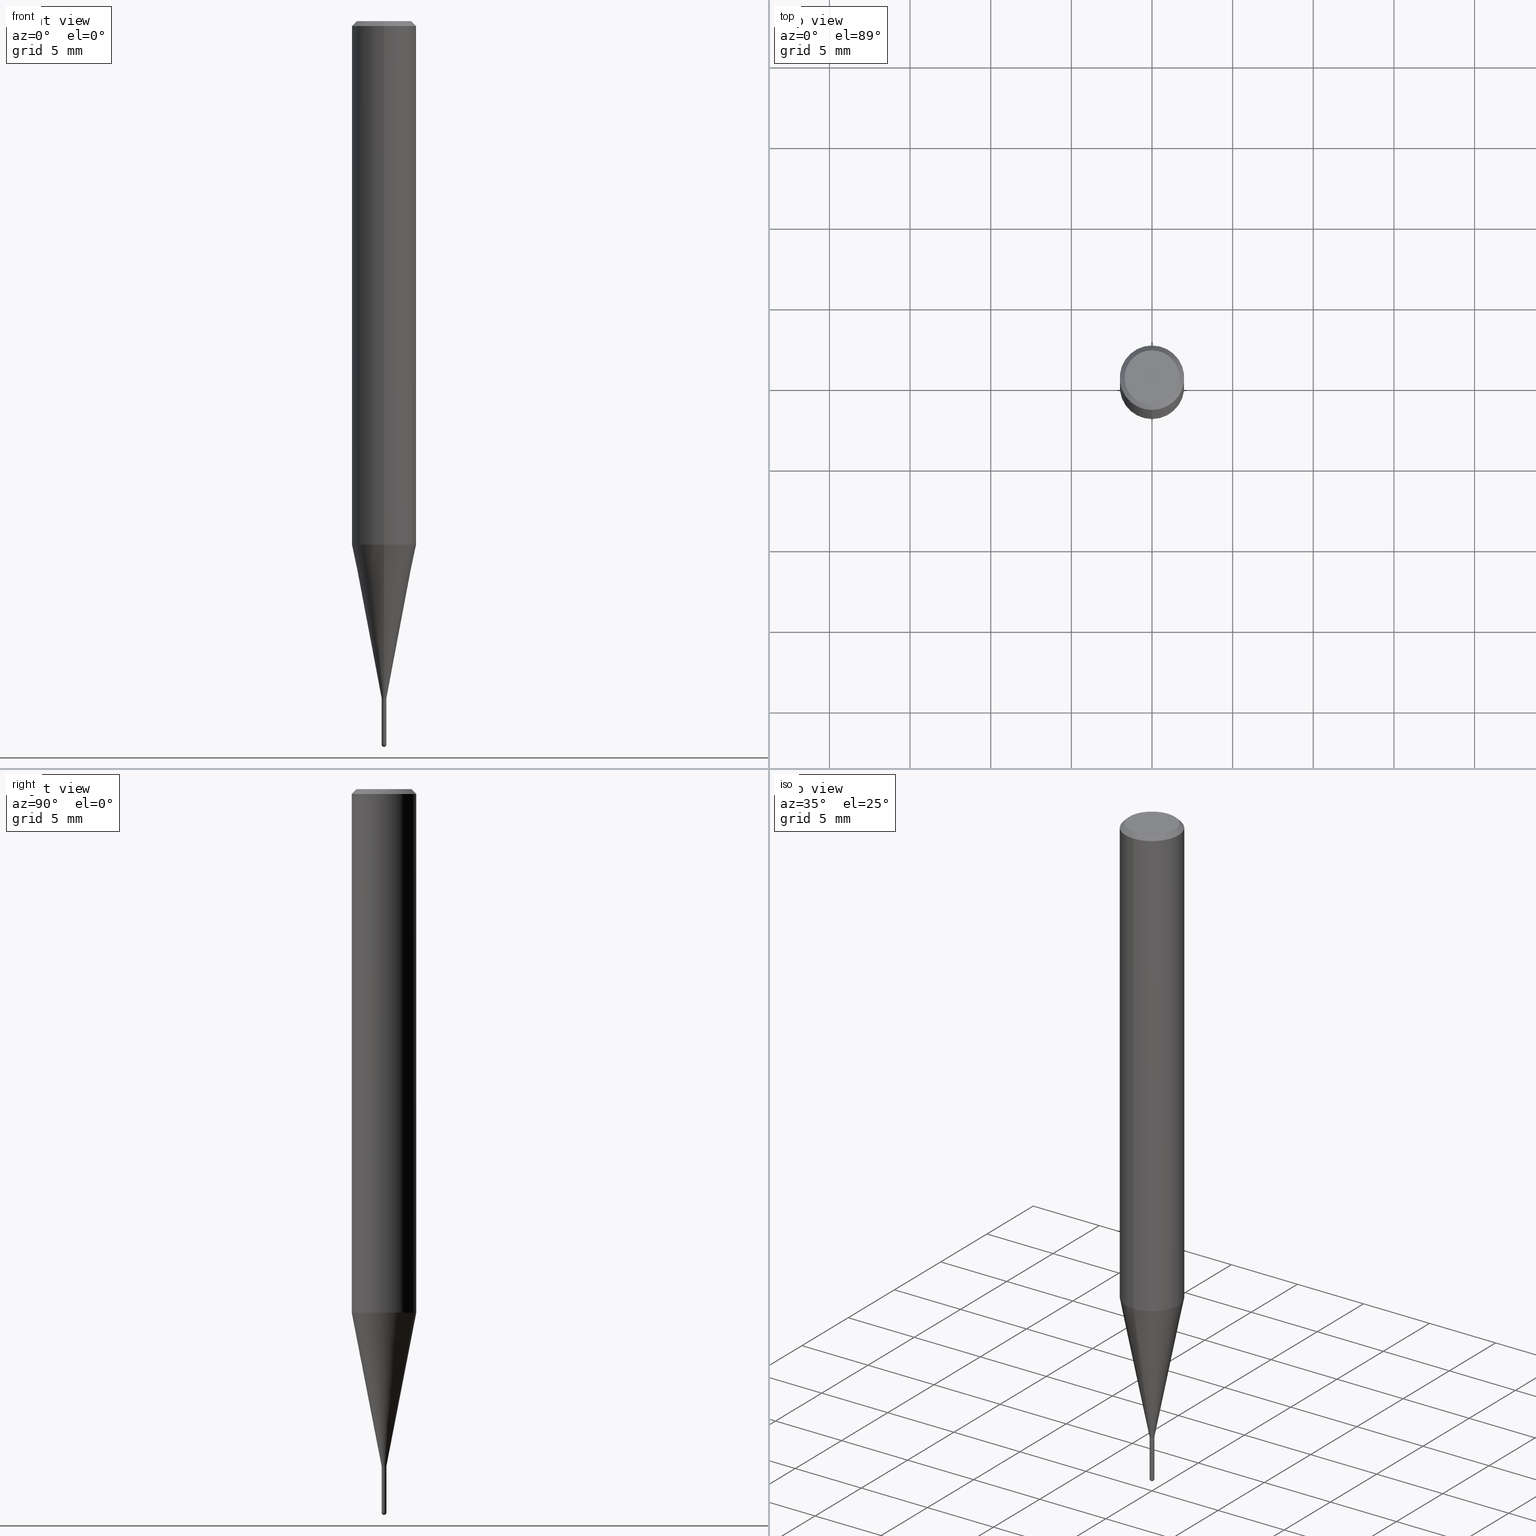
[diagram: canonical four-view strip — front | top / right | iso, engineering-drawing reading convention]
A machine part, canonical four-view strip (front | top / right | iso — engineering-drawing reading convention). The complete STEP part file that produces these views, byte-faithful:
ISO-10303-21;
HEADER;
FILE_DESCRIPTION(('no description'),'unknown implementation level');
FILE_NAME('CSELB2003-030-Huellk.stp','  ',('CIMSOURCE GmbH'),('CADClick - KiM GmbH - www.kimweb.de'),'unknown preprocess','ACIS','unknown authorization');
FILE_SCHEMA(('automotive_design'));
ENDSEC;
DATA;
#1=MECHANICAL_DESIGN_GEOMETRIC_PRESENTATION_REPRESENTATION(' ',(#14,#15,#16,#17,#18,#19,#20,#21,#22,#23,#24,#25,#26,#27,#28,#29,#30,#31,#32,#33,#34,#35,#36,#37,#38,#39,#40,#41,#42,#43,#44,#45,#46,#47,#48,#49,#50,#51,#52,#53,#54,#55,#56,#57,#58,#59,#60,#61,#62,#63,#64,#65,#66,#67,#68,#69,#70,#71,#72,#73,#74),#10);
#2=PRODUCT_DEFINITION_CONTEXT('',#75,'design');
#3=APPLICATION_PROTOCOL_DEFINITION('INTERNATIONAL STANDARD','automotive_design',1994,#75);
#4=PRODUCT_CATEGORY_RELATIONSHIP('NONE','NONE',#76,#77);
#5=SHAPE_DEFINITION_REPRESENTATION(#78,#79);
#6=PRODUCT_DEFINITION_CONTEXT('',#80,'design');
#7=APPLICATION_PROTOCOL_DEFINITION('INTERNATIONAL STANDARD','automotive_design',1994,#80);
#8=PRODUCT_CATEGORY_RELATIONSHIP('NONE','NONE',#81,#82);
#9=SHAPE_DEFINITION_REPRESENTATION(#83,#84);
#10= (GEOMETRIC_REPRESENTATION_CONTEXT(3)GLOBAL_UNCERTAINTY_ASSIGNED_CONTEXT((#87))GLOBAL_UNIT_ASSIGNED_CONTEXT((#89,#90,#91))REPRESENTATION_CONTEXT('NONE','WORKSPACE'));
#14=STYLED_ITEM('',(#93),#94);
#15=STYLED_ITEM('',(#95),#96);
#16=STYLED_ITEM('',(#97),#98);
#17=STYLED_ITEM('',(#99),#100);
#18=STYLED_ITEM('',(#101),#102);
#19=STYLED_ITEM('',(#103),#104);
#20=STYLED_ITEM('',(#105),#106);
#21=STYLED_ITEM('',(#107),#108);
#22=STYLED_ITEM('',(#109),#110);
#23=STYLED_ITEM('',(#111),#112);
#24=STYLED_ITEM('',(#113),#114);
#25=STYLED_ITEM('',(#115),#116);
#26=STYLED_ITEM('',(#117),#118);
#27=STYLED_ITEM('',(#119),#120);
#28=STYLED_ITEM('',(#121),#122);
#29=STYLED_ITEM('',(#123),#124);
#30=STYLED_ITEM('',(#125),#126);
#31=STYLED_ITEM('',(#127),#128);
#32=STYLED_ITEM('',(#129),#130);
#33=STYLED_ITEM('',(#131),#132);
#34=STYLED_ITEM('',(#133),#134);
#35=STYLED_ITEM('',(#135),#136);
#36=STYLED_ITEM('',(#137),#138);
#37=STYLED_ITEM('',(#139),#140);
#38=STYLED_ITEM('',(#141),#142);
#39=STYLED_ITEM('',(#143),#144);
#40=STYLED_ITEM('',(#145),#146);
#41=STYLED_ITEM('',(#147),#148);
#42=STYLED_ITEM('',(#149),#150);
#43=STYLED_ITEM('',(#151),#152);
#44=STYLED_ITEM('',(#153),#154);
#45=STYLED_ITEM('',(#155),#156);
#46=STYLED_ITEM('',(#157),#158);
#47=STYLED_ITEM('',(#159),#160);
#48=STYLED_ITEM('',(#161),#162);
#49=STYLED_ITEM('',(#163),#164);
#50=STYLED_ITEM('',(#165),#166);
#51=STYLED_ITEM('',(#167),#168);
#52=STYLED_ITEM('',(#169),#170);
#53=STYLED_ITEM('',(#171),#172);
#54=STYLED_ITEM('',(#173),#174);
#55=STYLED_ITEM('',(#175),#176);
#56=STYLED_ITEM('',(#177),#178);
#57=STYLED_ITEM('',(#179),#180);
#58=STYLED_ITEM('',(#181),#182);
#59=STYLED_ITEM('',(#183),#184);
#60=STYLED_ITEM('',(#185),#186);
#61=STYLED_ITEM('',(#187),#188);
#62=STYLED_ITEM('',(#189),#190);
#63=STYLED_ITEM('',(#191),#192);
#64=STYLED_ITEM('',(#193),#194);
#65=STYLED_ITEM('',(#195),#196);
#66=STYLED_ITEM('',(#197),#198);
#67=STYLED_ITEM('',(#199),#200);
#68=STYLED_ITEM('',(#201),#202);
#69=STYLED_ITEM('',(#203),#204);
#70=STYLED_ITEM('',(#205),#206);
#71=STYLED_ITEM('',(#207),#208);
#72=STYLED_ITEM('',(#209),#210);
#73=STYLED_ITEM('',(#211),#212);
#74=STYLED_ITEM('',(#213),#214);
#75=APPLICATION_CONTEXT(' ');
#76=PRODUCT_CATEGORY('part','NONE');
#77=PRODUCT_RELATED_PRODUCT_CATEGORY('detail',' ',(#215));
#78=PRODUCT_DEFINITION_SHAPE('NONE','NONE',#216);
#79=ADVANCED_BREP_SHAPE_REPRESENTATION('1',(#210,#217),#10);
#80=APPLICATION_CONTEXT(' ');
#81=PRODUCT_CATEGORY('part','NONE');
#82=PRODUCT_RELATED_PRODUCT_CATEGORY('detail',' ',(#218));
#83=PRODUCT_DEFINITION_SHAPE('NONE','NONE',#219);
#84=ADVANCED_BREP_SHAPE_REPRESENTATION('2',(#156,#220),#10);
#87=UNCERTAINTY_MEASURE_WITH_UNIT(LENGTH_MEASURE(1.0E-006),#89,'','');
#89= (CONVERSION_BASED_UNIT('MILLIMETRE',#223)LENGTH_UNIT()NAMED_UNIT(#226));
#90= (NAMED_UNIT(#228)PLANE_ANGLE_UNIT()SI_UNIT($,.RADIAN.));
#91= (NAMED_UNIT(#228)SOLID_ANGLE_UNIT()SI_UNIT($,.STERADIAN.));
#93=PRESENTATION_STYLE_ASSIGNMENT((#234));
#94=VERTEX_POINT('',#235);
#95=PRESENTATION_STYLE_ASSIGNMENT((#236));
#96=EDGE_CURVE('',#178,#204,#237,.T.);
#97=PRESENTATION_STYLE_ASSIGNMENT((#238));
#98=EDGE_CURVE('',#94,#164,#239,.T.);
#99=PRESENTATION_STYLE_ASSIGNMENT((#240));
#100=VERTEX_POINT('',#241);
#101=PRESENTATION_STYLE_ASSIGNMENT((#242));
#102=ADVANCED_FACE('',(#243,#244),#245,.T.);
#103=PRESENTATION_STYLE_ASSIGNMENT((#246));
#104=ADVANCED_FACE('',(#247),#248,.T.);
#105=PRESENTATION_STYLE_ASSIGNMENT((#249));
#106=VERTEX_POINT('',#250);
#107=PRESENTATION_STYLE_ASSIGNMENT((#251));
#108=EDGE_CURVE('',#196,#110,#252,.T.);
#109=PRESENTATION_STYLE_ASSIGNMENT((#253));
#110=VERTEX_POINT('',#254);
#111=PRESENTATION_STYLE_ASSIGNMENT((#255));
#112=ADVANCED_FACE('',(#256),#257,.T.);
#113=PRESENTATION_STYLE_ASSIGNMENT((#258));
#114=EDGE_CURVE('',#164,#174,#259,.T.);
#115=PRESENTATION_STYLE_ASSIGNMENT((#260));
#116=EDGE_CURVE('',#174,#164,#261,.T.);
#117=PRESENTATION_STYLE_ASSIGNMENT((#262));
#118=ADVANCED_FACE('',(#263),#264,.T.);
#119=PRESENTATION_STYLE_ASSIGNMENT((#265));
#120=EDGE_CURVE('',#174,#164,#266,.T.);
#121=PRESENTATION_STYLE_ASSIGNMENT((#267));
#122=ADVANCED_FACE('',(#268),#269,.T.);
#123=PRESENTATION_STYLE_ASSIGNMENT((#270));
#124=ADVANCED_FACE('',(#271),#272,.T.);
#125=PRESENTATION_STYLE_ASSIGNMENT((#273));
#126=EDGE_CURVE('',#180,#204,#274,.T.);
#127=PRESENTATION_STYLE_ASSIGNMENT((#275));
#128=VERTEX_POINT('',#276);
#129=PRESENTATION_STYLE_ASSIGNMENT((#277));
#130=EDGE_CURVE('',#128,#168,#278,.T.);
#131=PRESENTATION_STYLE_ASSIGNMENT((#279));
#132=ADVANCED_FACE('',(#280),#281,.T.);
#133=PRESENTATION_STYLE_ASSIGNMENT((#282));
#134=ADVANCED_FACE('',(#283),#284,.T.);
#135=PRESENTATION_STYLE_ASSIGNMENT((#285));
#136=EDGE_CURVE('',#162,#110,#286,.T.);
#137=PRESENTATION_STYLE_ASSIGNMENT((#287));
#138=VERTEX_POINT('',#288);
#139=PRESENTATION_STYLE_ASSIGNMENT((#289));
#140=EDGE_CURVE('',#196,#128,#290,.T.);
#141=PRESENTATION_STYLE_ASSIGNMENT((#291));
#142=EDGE_CURVE('',#170,#94,#292,.T.);
#143=PRESENTATION_STYLE_ASSIGNMENT((#293));
#144=ADVANCED_FACE('',(#294),#295,.T.);
#145=PRESENTATION_STYLE_ASSIGNMENT((#296));
#146=EDGE_CURVE('',#110,#196,#297,.T.);
#147=PRESENTATION_STYLE_ASSIGNMENT((#298));
#148=EDGE_CURVE('',#168,#100,#299,.T.);
#149=PRESENTATION_STYLE_ASSIGNMENT((#300));
#150=ADVANCED_FACE('',(#301),#302,.T.);
#151=PRESENTATION_STYLE_ASSIGNMENT((#303));
#152=EDGE_CURVE('',#204,#178,#304,.T.);
#153=PRESENTATION_STYLE_ASSIGNMENT((#305));
#154=EDGE_CURVE('',#174,#170,#306,.T.);
#155=PRESENTATION_STYLE_ASSIGNMENT((#307));
#156=MANIFOLD_SOLID_BREP('2',#308);
#157=PRESENTATION_STYLE_ASSIGNMENT((#309));
#158=EDGE_CURVE('',#100,#162,#310,.T.);
#159=PRESENTATION_STYLE_ASSIGNMENT((#311));
#160=ADVANCED_FACE('',(#312),#313,.T.);
#161=PRESENTATION_STYLE_ASSIGNMENT((#314));
#162=VERTEX_POINT('',#315);
#163=PRESENTATION_STYLE_ASSIGNMENT((#316));
#164=VERTEX_POINT('',#317);
#165=PRESENTATION_STYLE_ASSIGNMENT((#318));
#166=EDGE_CURVE('',#106,#178,#319,.T.);
#167=PRESENTATION_STYLE_ASSIGNMENT((#320));
#168=VERTEX_POINT('',#321);
#169=PRESENTATION_STYLE_ASSIGNMENT((#322));
#170=VERTEX_POINT('',#323);
#171=PRESENTATION_STYLE_ASSIGNMENT((#324));
#172=ADVANCED_FACE('',(#325),#326,.T.);
#173=PRESENTATION_STYLE_ASSIGNMENT((#327));
#174=VERTEX_POINT('',#328);
#175=PRESENTATION_STYLE_ASSIGNMENT((#329));
#176=EDGE_CURVE('',#106,#190,#330,.T.);
#177=PRESENTATION_STYLE_ASSIGNMENT((#331));
#178=VERTEX_POINT('',#332);
#179=PRESENTATION_STYLE_ASSIGNMENT((#333));
#180=VERTEX_POINT('',#334);
#181=PRESENTATION_STYLE_ASSIGNMENT((#335));
#182=EDGE_CURVE('',#180,#138,#336,.T.);
#183=PRESENTATION_STYLE_ASSIGNMENT((#337));
#184=ADVANCED_FACE('',(#338),#339,.T.);
#185=PRESENTATION_STYLE_ASSIGNMENT((#340));
#186=EDGE_CURVE('',#94,#170,#341,.T.);
#187=PRESENTATION_STYLE_ASSIGNMENT((#342));
#188=EDGE_CURVE('',#178,#138,#343,.T.);
#189=PRESENTATION_STYLE_ASSIGNMENT((#344));
#190=VERTEX_POINT('',#345);
#191=PRESENTATION_STYLE_ASSIGNMENT((#346));
#192=EDGE_CURVE('',#162,#128,#347,.T.);
#193=PRESENTATION_STYLE_ASSIGNMENT((#348));
#194=ADVANCED_FACE('',(#349),#350,.T.);
#195=PRESENTATION_STYLE_ASSIGNMENT((#351));
#196=VERTEX_POINT('',#352);
#197=PRESENTATION_STYLE_ASSIGNMENT((#353));
#198=ADVANCED_FACE('',(#354),#355,.T.);
#199=PRESENTATION_STYLE_ASSIGNMENT((#356));
#200=ADVANCED_FACE('',(#357),#358,.T.);
#201=PRESENTATION_STYLE_ASSIGNMENT((#359));
#202=EDGE_CURVE('',#138,#180,#360,.T.);
#203=PRESENTATION_STYLE_ASSIGNMENT((#361));
#204=VERTEX_POINT('',#362);
#205=PRESENTATION_STYLE_ASSIGNMENT((#363));
#206=EDGE_CURVE('',#190,#106,#364,.T.);
#207=PRESENTATION_STYLE_ASSIGNMENT((#365));
#208=EDGE_CURVE('',#128,#162,#366,.T.);
#209=PRESENTATION_STYLE_ASSIGNMENT((#367));
#210=MANIFOLD_SOLID_BREP('1',#368);
#211=PRESENTATION_STYLE_ASSIGNMENT((#369));
#212=EDGE_CURVE('',#204,#190,#370,.T.);
#213=PRESENTATION_STYLE_ASSIGNMENT((#371));
#214=EDGE_CURVE('',#100,#168,#372,.T.);
#215=PRODUCT('1','1','PART-1-DESC',(#373));
#216=PRODUCT_DEFINITION('NONE','NONE',#374,#2);
#217=AXIS2_PLACEMENT_3D('',#375,#376,#377);
#218=PRODUCT('2','2','PART-2-DESC',(#378));
#219=PRODUCT_DEFINITION('NONE','NONE',#379,#6);
#220=AXIS2_PLACEMENT_3D('',#380,#381,#382);
#223=LENGTH_MEASURE_WITH_UNIT(LENGTH_MEASURE(1.0),#383);
#226=DIMENSIONAL_EXPONENTS(1.0,0.0,0.0,0.0,0.0,0.0,0.0);
#228=DIMENSIONAL_EXPONENTS(0.0,0.0,0.0,0.0,0.0,0.0,0.0);
#234=POINT_STYLE(' ',#384,POSITIVE_LENGTH_MEASURE(1.0E-006),#385);
#235=CARTESIAN_POINT('',(0.0,0.1499,-44.76));
#236=CURVE_STYLE('',#386,POSITIVE_LENGTH_MEASURE(1.0E-006),#387);
#237=CIRCLE('',#388,0.14495);
#238=CURVE_STYLE('',#389,POSITIVE_LENGTH_MEASURE(1.0E-006),#390);
#239=LINE('',#391,#392);
#240=POINT_STYLE(' ',#393,POSITIVE_LENGTH_MEASURE(1.0E-006),#394);
#241=CARTESIAN_POINT('',(0.0,1.7,0.0));
#242=SURFACE_STYLE_USAGE(.BOTH.,#395);
#243=FACE_OUTER_BOUND('',#396,.T.);
#244=FACE_BOUND('',#397,.T.);
#245=PLANE('',#398);
#246=SURFACE_STYLE_USAGE(.BOTH.,#399);
#247=FACE_OUTER_BOUND('',#400,.T.);
#248=CYLINDRICAL_SURFACE('',#401,0.14495);
#249=POINT_STYLE(' ',#402,POSITIVE_LENGTH_MEASURE(1.0E-006),#403);
#250=CARTESIAN_POINT('',(1.77506690986554E-017,-0.14495,-44.76));
#251=CURVE_STYLE('',#404,POSITIVE_LENGTH_MEASURE(1.0E-006),#405);
#252=CIRCLE('',#406,2.0);
#253=POINT_STYLE(' ',#407,POSITIVE_LENGTH_MEASURE(1.0E-006),#408);
#254=CARTESIAN_POINT('',(0.0,2.0,-32.457));
#255=SURFACE_STYLE_USAGE(.BOTH.,#409);
#256=FACE_OUTER_BOUND('',#410,.T.);
#257=SPHERICAL_SURFACE('',#411,0.15);
#258=CURVE_STYLE('',#412,POSITIVE_LENGTH_MEASURE(1.0E-006),#413);
#259=CIRCLE('',#414,0.15);
#260=CURVE_STYLE('',#415,POSITIVE_LENGTH_MEASURE(1.0E-006),#416);
#261=CIRCLE('',#417,0.15);
#262=SURFACE_STYLE_USAGE(.BOTH.,#418);
#263=FACE_OUTER_BOUND('',#419,.T.);
#264=PLANE('',#420);
#265=CURVE_STYLE('',#421,POSITIVE_LENGTH_MEASURE(1.0E-006),#422);
#266=CIRCLE('',#423,0.15);
#267=SURFACE_STYLE_USAGE(.BOTH.,#424);
#268=FACE_OUTER_BOUND('',#425,.T.);
#269=CONICAL_SURFACE('',#426,1.07245,0.19198911666217);
#270=SURFACE_STYLE_USAGE(.BOTH.,#427);
#271=FACE_OUTER_BOUND('',#428,.T.);
#272=CYLINDRICAL_SURFACE('',#429,0.14495);
#273=CURVE_STYLE('',#430,POSITIVE_LENGTH_MEASURE(1.0E-006),#431);
#274=LINE('',#432,#433);
#275=POINT_STYLE(' ',#434,POSITIVE_LENGTH_MEASURE(1.0E-006),#435);
#276=CARTESIAN_POINT('',(2.44921270764475E-016,-2.0,-0.299999999999997));
#277=CURVE_STYLE('',#436,POSITIVE_LENGTH_MEASURE(1.0E-006),#437);
#278=LINE('',#438,#439);
#279=SURFACE_STYLE_USAGE(.BOTH.,#440);
#280=FACE_OUTER_BOUND('',#441,.T.);
#281=CONICAL_SURFACE('',#442,1.07245,0.19198911666217);
#282=SURFACE_STYLE_USAGE(.BOTH.,#443);
#283=FACE_OUTER_BOUND('',#444,.T.);
#284=CONICAL_SURFACE('',#445,1.85,0.785398163397453);
#285=CURVE_STYLE('',#446,POSITIVE_LENGTH_MEASURE(1.0E-006),#447);
#286=LINE('',#448,#449);
#287=POINT_STYLE(' ',#450,POSITIVE_LENGTH_MEASURE(1.0E-006),#451);
#288=CARTESIAN_POINT('',(2.44915147732706E-016,-1.99995,-32.457));
#289=CURVE_STYLE('',#452,POSITIVE_LENGTH_MEASURE(1.0E-006),#453);
#290=LINE('',#454,#455);
#291=CURVE_STYLE('',#456,POSITIVE_LENGTH_MEASURE(1.0E-006),#457);
#292=CIRCLE('',#458,0.1499);
#293=SURFACE_STYLE_USAGE(.BOTH.,#459);
#294=FACE_OUTER_BOUND('',#460,.T.);
#295=CONICAL_SURFACE('',#461,0.14995,0.00111111065386396);
#296=CURVE_STYLE('',#462,POSITIVE_LENGTH_MEASURE(1.0E-006),#463);
#297=CIRCLE('',#464,2.0);
#298=CURVE_STYLE('',#465,POSITIVE_LENGTH_MEASURE(1.0E-006),#466);
#299=CIRCLE('',#467,1.7);
#300=SURFACE_STYLE_USAGE(.BOTH.,#468);
#301=FACE_OUTER_BOUND('',#469,.T.);
#302=CONICAL_SURFACE('',#470,0.14995,0.00111111065386396);
#303=CURVE_STYLE('',#471,POSITIVE_LENGTH_MEASURE(1.0E-006),#472);
#304=CIRCLE('',#473,0.14495);
#305=CURVE_STYLE('',#474,POSITIVE_LENGTH_MEASURE(1.0E-006),#475);
#306=LINE('',#476,#477);
#307=SURFACE_STYLE_USAGE(.BOTH.,#478);
#308=CLOSED_SHELL('',(#198,#144,#160,#150,#112));
#309=CURVE_STYLE('',#479,POSITIVE_LENGTH_MEASURE(1.0E-006),#480);
#310=LINE('',#481,#482);
#311=SURFACE_STYLE_USAGE(.BOTH.,#483);
#312=FACE_OUTER_BOUND('',#484,.T.);
#313=PLANE('',#485);
#314=POINT_STYLE(' ',#486,POSITIVE_LENGTH_MEASURE(1.0E-006),#487);
#315=CARTESIAN_POINT('',(0.0,2.0,-0.299999999999997));
#316=POINT_STYLE(' ',#488,POSITIVE_LENGTH_MEASURE(1.0E-006),#489);
#317=CARTESIAN_POINT('',(0.0,0.15,-44.85));
#318=CURVE_STYLE('',#490,POSITIVE_LENGTH_MEASURE(1.0E-006),#491);
#319=LINE('',#492,#493);
#320=POINT_STYLE(' ',#494,POSITIVE_LENGTH_MEASURE(1.0E-006),#495);
#321=CARTESIAN_POINT('',(2.08183080149804E-016,-1.7,0.0));
#322=POINT_STYLE(' ',#496,POSITIVE_LENGTH_MEASURE(1.0E-006),#497);
#323=CARTESIAN_POINT('',(1.83568492437974E-017,-0.1499,-44.76));
#324=SURFACE_STYLE_USAGE(.BOTH.,#498);
#325=FACE_OUTER_BOUND('',#499,.T.);
#326=CONICAL_SURFACE('',#500,1.85,0.785398163397453);
#327=POINT_STYLE(' ',#501,POSITIVE_LENGTH_MEASURE(1.0E-006),#502);
#328=CARTESIAN_POINT('',(1.83690953073356E-017,-0.15,-44.85));
#329=CURVE_STYLE('',#503,POSITIVE_LENGTH_MEASURE(1.0E-006),#504);
#330=CIRCLE('',#505,0.14495);
#331=POINT_STYLE(' ',#506,POSITIVE_LENGTH_MEASURE(1.0E-006),#507);
#332=CARTESIAN_POINT('',(1.77506690986554E-017,-0.14495,-42.0));
#333=POINT_STYLE(' ',#508,POSITIVE_LENGTH_MEASURE(1.0E-006),#509);
#334=CARTESIAN_POINT('',(0.0,1.99995,-32.457));
#335=CURVE_STYLE('',#510,POSITIVE_LENGTH_MEASURE(1.0E-006),#511);
#336=CIRCLE('',#512,1.99995);
#337=SURFACE_STYLE_USAGE(.BOTH.,#513);
#338=FACE_OUTER_BOUND('',#514,.T.);
#339=CYLINDRICAL_SURFACE('',#515,2.0);
#340=CURVE_STYLE('',#516,POSITIVE_LENGTH_MEASURE(1.0E-006),#517);
#341=CIRCLE('',#518,0.1499);
#342=CURVE_STYLE('',#519,POSITIVE_LENGTH_MEASURE(1.0E-006),#520);
#343=LINE('',#521,#522);
#344=POINT_STYLE(' ',#523,POSITIVE_LENGTH_MEASURE(1.0E-006),#524);
#345=CARTESIAN_POINT('',(0.0,0.14495,-44.76));
#346=CURVE_STYLE('',#525,POSITIVE_LENGTH_MEASURE(1.0E-006),#526);
#347=CIRCLE('',#527,2.0);
#348=SURFACE_STYLE_USAGE(.BOTH.,#528);
#349=FACE_OUTER_BOUND('',#529,.T.);
#350=PLANE('',#530);
#351=POINT_STYLE(' ',#531,POSITIVE_LENGTH_MEASURE(1.0E-006),#532);
#352=CARTESIAN_POINT('',(2.44921270764475E-016,-2.0,-32.457));
#353=SURFACE_STYLE_USAGE(.BOTH.,#533);
#354=FACE_OUTER_BOUND('',#534,.T.);
#355=SPHERICAL_SURFACE('',#535,0.15);
#356=SURFACE_STYLE_USAGE(.BOTH.,#536);
#357=FACE_OUTER_BOUND('',#537,.T.);
#358=CYLINDRICAL_SURFACE('',#538,2.0);
#359=CURVE_STYLE('',#539,POSITIVE_LENGTH_MEASURE(1.0E-006),#540);
#360=CIRCLE('',#541,1.99995);
#361=POINT_STYLE(' ',#542,POSITIVE_LENGTH_MEASURE(1.0E-006),#543);
#362=CARTESIAN_POINT('',(0.0,0.14495,-42.0));
#363=CURVE_STYLE('',#544,POSITIVE_LENGTH_MEASURE(1.0E-006),#545);
#364=CIRCLE('',#546,0.14495);
#365=CURVE_STYLE('',#547,POSITIVE_LENGTH_MEASURE(1.0E-006),#548);
#366=CIRCLE('',#549,2.0);
#367=SURFACE_STYLE_USAGE(.BOTH.,#550);
#368=CLOSED_SHELL('',(#104,#132,#184,#134,#102,#194,#172,#200,#122,#124,#118));
#369=CURVE_STYLE('',#551,POSITIVE_LENGTH_MEASURE(1.0E-006),#552);
#370=LINE('',#553,#554);
#371=CURVE_STYLE('',#555,POSITIVE_LENGTH_MEASURE(1.0E-006),#556);
#372=CIRCLE('',#557,1.7);
#373=PRODUCT_CONTEXT('',#75,'mechanical');
#374=PRODUCT_DEFINITION_FORMATION_WITH_SPECIFIED_SOURCE(' ','NONE',#215,.NOT_KNOWN.);
#375=CARTESIAN_POINT('',(0.0,0.0,0.0));
#376=DIRECTION('',(0.0,0.0,1.0));
#377=DIRECTION('',(1.0,0.0,0.0));
#378=PRODUCT_CONTEXT('',#80,'mechanical');
#379=PRODUCT_DEFINITION_FORMATION_WITH_SPECIFIED_SOURCE(' ','NONE',#218,.NOT_KNOWN.);
#380=CARTESIAN_POINT('',(0.0,0.0,0.0));
#381=DIRECTION('',(0.0,0.0,1.0));
#382=DIRECTION('',(1.0,0.0,0.0));
#383= (NAMED_UNIT(#226)LENGTH_UNIT()SI_UNIT(.MILLI.,.METRE.));
#384=PRE_DEFINED_MARKER('');
#385=COLOUR_RGB('',0.800000011920929,0.800000011920929,0.800000011920929);
#386=DRAUGHTING_PRE_DEFINED_CURVE_FONT('continuous');
#387=COLOUR_RGB('',0.498039215803146,0.498039215803146,0.498039215803146);
#388=AXIS2_PLACEMENT_3D('',#559,#560,#561);
#389=DRAUGHTING_PRE_DEFINED_CURVE_FONT('continuous');
#390=COLOUR_RGB('',0.800000011920929,0.800000011920929,0.800000011920929);
#391=CARTESIAN_POINT('',(-1.83629722755665E-017,0.14995,-44.805));
#392=VECTOR('',#562,1.0);
#393=PRE_DEFINED_MARKER('');
#394=COLOUR_RGB('',0.498039215803146,0.498039215803146,0.498039215803146);
#395=SURFACE_SIDE_STYLE('',(#563));
#396=EDGE_LOOP('',(#564,#565));
#397=EDGE_LOOP('',(#566,#567));
#398=AXIS2_PLACEMENT_3D('',#568,#569,#570);
#399=SURFACE_SIDE_STYLE('',(#571));
#400=EDGE_LOOP('',(#572,#573,#574,#575));
#401=AXIS2_PLACEMENT_3D('',#576,#577,#578);
#402=PRE_DEFINED_MARKER('');
#403=COLOUR_RGB('',0.498039215803146,0.498039215803146,0.498039215803146);
#404=DRAUGHTING_PRE_DEFINED_CURVE_FONT('continuous');
#405=COLOUR_RGB('',0.498039215803146,0.498039215803146,0.498039215803146);
#406=AXIS2_PLACEMENT_3D('',#579,#580,#581);
#407=PRE_DEFINED_MARKER('');
#408=COLOUR_RGB('',0.498039215803146,0.498039215803146,0.498039215803146);
#409=SURFACE_SIDE_STYLE('',(#582));
#410=EDGE_LOOP('',(#583,#584));
#411=AXIS2_PLACEMENT_3D('',#585,#586,#587);
#412=DRAUGHTING_PRE_DEFINED_CURVE_FONT('continuous');
#413=COLOUR_RGB('',0.800000011920929,0.800000011920929,0.800000011920929);
#414=AXIS2_PLACEMENT_3D('',#588,#589,#590);
#415=DRAUGHTING_PRE_DEFINED_CURVE_FONT('continuous');
#416=COLOUR_RGB('',0.800000011920929,0.800000011920929,0.800000011920929);
#417=AXIS2_PLACEMENT_3D('',#591,#592,#593);
#418=SURFACE_SIDE_STYLE('',(#594));
#419=EDGE_LOOP('',(#595,#596));
#420=AXIS2_PLACEMENT_3D('',#597,#598,#599);
#421=DRAUGHTING_PRE_DEFINED_CURVE_FONT('continuous');
#422=COLOUR_RGB('',0.800000011920929,0.800000011920929,0.800000011920929);
#423=AXIS2_PLACEMENT_3D('',#600,#601,#602);
#424=SURFACE_SIDE_STYLE('',(#603));
#425=EDGE_LOOP('',(#604,#605,#606,#607));
#426=AXIS2_PLACEMENT_3D('',#608,#609,#610);
#427=SURFACE_SIDE_STYLE('',(#611));
#428=EDGE_LOOP('',(#612,#613,#614,#615));
#429=AXIS2_PLACEMENT_3D('',#616,#617,#618);
#430=DRAUGHTING_PRE_DEFINED_CURVE_FONT('continuous');
#431=COLOUR_RGB('',0.498039215803146,0.498039215803146,0.498039215803146);
#432=CARTESIAN_POINT('',(-1.31332908415681E-016,1.07245,-37.2285));
#433=VECTOR('',#619,1.0);
#434=PRE_DEFINED_MARKER('');
#435=COLOUR_RGB('',0.498039215803146,0.498039215803146,0.498039215803146);
#436=DRAUGHTING_PRE_DEFINED_CURVE_FONT('continuous');
#437=COLOUR_RGB('',0.498039215803146,0.498039215803146,0.498039215803146);
#438=CARTESIAN_POINT('',(2.2655217545714E-016,-1.85,-0.149999999999999));
#439=VECTOR('',#620,1.0);
#440=SURFACE_SIDE_STYLE('',(#621));
#441=EDGE_LOOP('',(#622,#623,#624,#625));
#442=AXIS2_PLACEMENT_3D('',#626,#627,#628);
#443=SURFACE_SIDE_STYLE('',(#629));
#444=EDGE_LOOP('',(#630,#631,#632,#633));
#445=AXIS2_PLACEMENT_3D('',#634,#635,#636);
#446=DRAUGHTING_PRE_DEFINED_CURVE_FONT('continuous');
#447=COLOUR_RGB('',0.498039215803146,0.498039215803146,0.498039215803146);
#448=CARTESIAN_POINT('',(-2.44921270764475E-016,2.0,-16.3785));
#449=VECTOR('',#637,1.0);
#450=PRE_DEFINED_MARKER('');
#451=COLOUR_RGB('',0.498039215803146,0.498039215803146,0.498039215803146);
#452=DRAUGHTING_PRE_DEFINED_CURVE_FONT('continuous');
#453=COLOUR_RGB('',0.498039215803146,0.498039215803146,0.498039215803146);
#454=CARTESIAN_POINT('',(2.44921270764475E-016,-2.0,-16.3785));
#455=VECTOR('',#638,1.0);
#456=DRAUGHTING_PRE_DEFINED_CURVE_FONT('continuous');
#457=COLOUR_RGB('',0.800000011920929,0.800000011920929,0.800000011920929);
#458=AXIS2_PLACEMENT_3D('',#639,#640,#641);
#459=SURFACE_SIDE_STYLE('',(#642));
#460=EDGE_LOOP('',(#643,#644,#645,#646));
#461=AXIS2_PLACEMENT_3D('',#647,#648,#649);
#462=DRAUGHTING_PRE_DEFINED_CURVE_FONT('continuous');
#463=COLOUR_RGB('',0.498039215803146,0.498039215803146,0.498039215803146);
#464=AXIS2_PLACEMENT_3D('',#650,#651,#652);
#465=DRAUGHTING_PRE_DEFINED_CURVE_FONT('continuous');
#466=COLOUR_RGB('',0.498039215803146,0.498039215803146,0.498039215803146);
#467=AXIS2_PLACEMENT_3D('',#653,#654,#655);
#468=SURFACE_SIDE_STYLE('',(#656));
#469=EDGE_LOOP('',(#657,#658,#659,#660));
#470=AXIS2_PLACEMENT_3D('',#661,#662,#663);
#471=DRAUGHTING_PRE_DEFINED_CURVE_FONT('continuous');
#472=COLOUR_RGB('',0.498039215803146,0.498039215803146,0.498039215803146);
#473=AXIS2_PLACEMENT_3D('',#664,#665,#666);
#474=DRAUGHTING_PRE_DEFINED_CURVE_FONT('continuous');
#475=COLOUR_RGB('',0.800000011920929,0.800000011920929,0.800000011920929);
#476=CARTESIAN_POINT('',(1.83629722755665E-017,-0.14995,-44.805));
#477=VECTOR('',#667,1.0);
#478=SURFACE_SIDE_STYLE('',(#668));
#479=DRAUGHTING_PRE_DEFINED_CURVE_FONT('continuous');
#480=COLOUR_RGB('',0.498039215803146,0.498039215803146,0.498039215803146);
#481=CARTESIAN_POINT('',(-2.2655217545714E-016,1.85,-0.149999999999999));
#482=VECTOR('',#669,1.0);
#483=SURFACE_SIDE_STYLE('',(#670));
#484=EDGE_LOOP('',(#671,#672));
#485=AXIS2_PLACEMENT_3D('',#673,#674,#675);
#486=PRE_DEFINED_MARKER('');
#487=COLOUR_RGB('',0.498039215803146,0.498039215803146,0.498039215803146);
#488=PRE_DEFINED_MARKER('');
#489=COLOUR_RGB('',0.800000011920929,0.800000011920929,0.800000011920929);
#490=DRAUGHTING_PRE_DEFINED_CURVE_FONT('continuous');
#491=COLOUR_RGB('',0.498039215803146,0.498039215803146,0.498039215803146);
#492=CARTESIAN_POINT('',(1.77506690986554E-017,-0.14495,-43.38));
#493=VECTOR('',#676,1.0);
#494=PRE_DEFINED_MARKER('');
#495=COLOUR_RGB('',0.498039215803146,0.498039215803146,0.498039215803146);
#496=PRE_DEFINED_MARKER('');
#497=COLOUR_RGB('',0.800000011920929,0.800000011920929,0.800000011920929);
#498=SURFACE_SIDE_STYLE('',(#677));
#499=EDGE_LOOP('',(#678,#679,#680,#681));
#500=AXIS2_PLACEMENT_3D('',#682,#683,#684);
#501=PRE_DEFINED_MARKER('');
#502=COLOUR_RGB('',0.800000011920929,0.800000011920929,0.800000011920929);
#503=DRAUGHTING_PRE_DEFINED_CURVE_FONT('continuous');
#504=COLOUR_RGB('',0.498039215803146,0.498039215803146,0.498039215803146);
#505=AXIS2_PLACEMENT_3D('',#685,#686,#687);
#506=PRE_DEFINED_MARKER('');
#507=COLOUR_RGB('',0.498039215803146,0.498039215803146,0.498039215803146);
#508=PRE_DEFINED_MARKER('');
#509=COLOUR_RGB('',0.498039215803146,0.498039215803146,0.498039215803146);
#510=DRAUGHTING_PRE_DEFINED_CURVE_FONT('continuous');
#511=COLOUR_RGB('',0.498039215803146,0.498039215803146,0.498039215803146);
#512=AXIS2_PLACEMENT_3D('',#688,#689,#690);
#513=SURFACE_SIDE_STYLE('',(#691));
#514=EDGE_LOOP('',(#692,#693,#694,#695));
#515=AXIS2_PLACEMENT_3D('',#696,#697,#698);
#516=DRAUGHTING_PRE_DEFINED_CURVE_FONT('continuous');
#517=COLOUR_RGB('',0.800000011920929,0.800000011920929,0.800000011920929);
#518=AXIS2_PLACEMENT_3D('',#699,#700,#701);
#519=DRAUGHTING_PRE_DEFINED_CURVE_FONT('continuous');
#520=COLOUR_RGB('',0.498039215803146,0.498039215803146,0.498039215803146);
#521=CARTESIAN_POINT('',(1.31332908415681E-016,-1.07245,-37.2285));
#522=VECTOR('',#702,1.0);
#523=PRE_DEFINED_MARKER('');
#524=COLOUR_RGB('',0.498039215803146,0.498039215803146,0.498039215803146);
#525=DRAUGHTING_PRE_DEFINED_CURVE_FONT('continuous');
#526=COLOUR_RGB('',0.498039215803146,0.498039215803146,0.498039215803146);
#527=AXIS2_PLACEMENT_3D('',#703,#704,#705);
#528=SURFACE_SIDE_STYLE('',(#706));
#529=EDGE_LOOP('',(#707,#708));
#530=AXIS2_PLACEMENT_3D('',#709,#710,#711);
#531=PRE_DEFINED_MARKER('');
#532=COLOUR_RGB('',0.498039215803146,0.498039215803146,0.498039215803146);
#533=SURFACE_SIDE_STYLE('',(#712));
#534=EDGE_LOOP('',(#713,#714));
#535=AXIS2_PLACEMENT_3D('',#715,#716,#717);
#536=SURFACE_SIDE_STYLE('',(#718));
#537=EDGE_LOOP('',(#719,#720,#721,#722));
#538=AXIS2_PLACEMENT_3D('',#723,#724,#725);
#539=DRAUGHTING_PRE_DEFINED_CURVE_FONT('continuous');
#540=COLOUR_RGB('',0.498039215803146,0.498039215803146,0.498039215803146);
#541=AXIS2_PLACEMENT_3D('',#726,#727,#728);
#542=PRE_DEFINED_MARKER('');
#543=COLOUR_RGB('',0.498039215803146,0.498039215803146,0.498039215803146);
#544=DRAUGHTING_PRE_DEFINED_CURVE_FONT('continuous');
#545=COLOUR_RGB('',0.498039215803146,0.498039215803146,0.498039215803146);
#546=AXIS2_PLACEMENT_3D('',#729,#730,#731);
#547=DRAUGHTING_PRE_DEFINED_CURVE_FONT('continuous');
#548=COLOUR_RGB('',0.498039215803146,0.498039215803146,0.498039215803146);
#549=AXIS2_PLACEMENT_3D('',#732,#733,#734);
#550=SURFACE_SIDE_STYLE('',(#735));
#551=DRAUGHTING_PRE_DEFINED_CURVE_FONT('continuous');
#552=COLOUR_RGB('',0.498039215803146,0.498039215803146,0.498039215803146);
#553=CARTESIAN_POINT('',(-1.77506690986554E-017,0.14495,-43.38));
#554=VECTOR('',#736,1.0);
#555=DRAUGHTING_PRE_DEFINED_CURVE_FONT('continuous');
#556=COLOUR_RGB('',0.498039215803146,0.498039215803146,0.498039215803146);
#557=AXIS2_PLACEMENT_3D('',#737,#738,#739);
#559=CARTESIAN_POINT('',(0.0,0.0,-42.0));
#560=DIRECTION('',(0.0,0.0,-1.0));
#561=DIRECTION('',(0.0,1.0,0.0));
#562=DIRECTION('',(-1.36067288654788E-019,0.00111111042524057,-0.999999382716621));
#563=SURFACE_STYLE_FILL_AREA(#740);
#564=ORIENTED_EDGE('',*,*,#146,.T.);
#565=ORIENTED_EDGE('',*,*,#108,.T.);
#566=ORIENTED_EDGE('',*,*,#182,.F.);
#567=ORIENTED_EDGE('',*,*,#202,.F.);
#568=CARTESIAN_POINT('',(0.0,1.0,-32.457));
#569=DIRECTION('',(0.0,0.0,-1.0));
#570=DIRECTION('',(0.0,1.0,0.0));
#571=SURFACE_STYLE_FILL_AREA(#741);
#572=ORIENTED_EDGE('',*,*,#212,.F.);
#573=ORIENTED_EDGE('',*,*,#152,.T.);
#574=ORIENTED_EDGE('',*,*,#166,.F.);
#575=ORIENTED_EDGE('',*,*,#206,.F.);
#576=CARTESIAN_POINT('',(0.0,0.0,-43.38));
#577=DIRECTION('',(-0.0,-0.0,1.0));
#578=DIRECTION('',(0.0,1.0,0.0));
#579=CARTESIAN_POINT('',(0.0,0.0,-32.457));
#580=DIRECTION('',(0.0,0.0,-1.0));
#581=DIRECTION('',(0.0,1.0,0.0));
#582=SURFACE_STYLE_FILL_AREA(#742);
#583=ORIENTED_EDGE('',*,*,#120,.T.);
#584=ORIENTED_EDGE('',*,*,#114,.T.);
#585=CARTESIAN_POINT('',(0.0,0.0,-44.85));
#586=DIRECTION('',(0.0,1.0,0.0));
#587=DIRECTION('',(0.0,0.0,-1.0));
#588=CARTESIAN_POINT('',(0.0,0.0,-44.85));
#589=DIRECTION('',(0.0,0.0,-1.0));
#590=DIRECTION('',(0.0,1.0,0.0));
#591=CARTESIAN_POINT('',(0.0,0.0,-44.85));
#592=DIRECTION('',(0.0,0.0,-1.0));
#593=DIRECTION('',(0.0,1.0,0.0));
#594=SURFACE_STYLE_FILL_AREA(#743);
#595=ORIENTED_EDGE('',*,*,#206,.T.);
#596=ORIENTED_EDGE('',*,*,#176,.T.);
#597=CARTESIAN_POINT('',(0.0,0.072475,-44.76));
#598=DIRECTION('',(0.0,0.0,-1.0));
#599=DIRECTION('',(0.0,1.0,0.0));
#600=CARTESIAN_POINT('',(0.0,0.0,-44.85));
#601=DIRECTION('',(1.0,0.0,1.22460635382239E-016));
#602=DIRECTION('',(-1.22460635382239E-016,0.0,1.0));
#603=SURFACE_STYLE_FILL_AREA(#744);
#604=ORIENTED_EDGE('',*,*,#126,.T.);
#605=ORIENTED_EDGE('',*,*,#96,.F.);
#606=ORIENTED_EDGE('',*,*,#188,.T.);
#607=ORIENTED_EDGE('',*,*,#202,.T.);
#608=CARTESIAN_POINT('',(0.0,0.0,-37.2285));
#609=DIRECTION('',(-0.0,-0.0,1.0));
#610=DIRECTION('',(0.0,1.0,0.0));
#611=SURFACE_STYLE_FILL_AREA(#745);
#612=ORIENTED_EDGE('',*,*,#212,.T.);
#613=ORIENTED_EDGE('',*,*,#176,.F.);
#614=ORIENTED_EDGE('',*,*,#166,.T.);
#615=ORIENTED_EDGE('',*,*,#96,.T.);
#616=CARTESIAN_POINT('',(0.0,0.0,-43.38));
#617=DIRECTION('',(-0.0,-0.0,1.0));
#618=DIRECTION('',(0.0,1.0,0.0));
#619=DIRECTION('',(2.33669392942694E-017,-0.190811841056793,-0.981626630299177));
#620=DIRECTION('',(-8.6592745707194E-017,0.707106781186551,0.707106781186544));
#621=SURFACE_STYLE_FILL_AREA(#746);
#622=ORIENTED_EDGE('',*,*,#126,.F.);
#623=ORIENTED_EDGE('',*,*,#182,.T.);
#624=ORIENTED_EDGE('',*,*,#188,.F.);
#625=ORIENTED_EDGE('',*,*,#152,.F.);
#626=CARTESIAN_POINT('',(0.0,0.0,-37.2285));
#627=DIRECTION('',(-0.0,-0.0,1.0));
#628=DIRECTION('',(0.0,1.0,0.0));
#629=SURFACE_STYLE_FILL_AREA(#747);
#630=ORIENTED_EDGE('',*,*,#158,.F.);
#631=ORIENTED_EDGE('',*,*,#214,.T.);
#632=ORIENTED_EDGE('',*,*,#130,.F.);
#633=ORIENTED_EDGE('',*,*,#192,.F.);
#634=CARTESIAN_POINT('',(0.0,0.0,-0.149999999999999));
#635=DIRECTION('',(0.0,-0.0,-1.0));
#636=DIRECTION('',(0.0,1.0,0.0));
#637=DIRECTION('',(0.0,0.0,-1.0));
#638=DIRECTION('',(-0.0,-0.0,1.0));
#639=CARTESIAN_POINT('',(0.0,0.0,-44.76));
#640=DIRECTION('',(0.0,0.0,-1.0));
#641=DIRECTION('',(0.0,1.0,0.0));
#642=SURFACE_STYLE_FILL_AREA(#748);
#643=ORIENTED_EDGE('',*,*,#98,.F.);
#644=ORIENTED_EDGE('',*,*,#186,.T.);
#645=ORIENTED_EDGE('',*,*,#154,.F.);
#646=ORIENTED_EDGE('',*,*,#114,.F.);
#647=CARTESIAN_POINT('',(0.0,0.0,-44.805));
#648=DIRECTION('',(0.0,-0.0,-1.0));
#649=DIRECTION('',(0.0,1.0,0.0));
#650=CARTESIAN_POINT('',(0.0,0.0,-32.457));
#651=DIRECTION('',(0.0,0.0,-1.0));
#652=DIRECTION('',(0.0,1.0,0.0));
#653=CARTESIAN_POINT('',(0.0,0.0,0.0));
#654=DIRECTION('',(0.0,0.0,-1.0));
#655=DIRECTION('',(0.0,1.0,0.0));
#656=SURFACE_STYLE_FILL_AREA(#749);
#657=ORIENTED_EDGE('',*,*,#98,.T.);
#658=ORIENTED_EDGE('',*,*,#116,.F.);
#659=ORIENTED_EDGE('',*,*,#154,.T.);
#660=ORIENTED_EDGE('',*,*,#142,.T.);
#661=CARTESIAN_POINT('',(0.0,0.0,-44.805));
#662=DIRECTION('',(0.0,-0.0,-1.0));
#663=DIRECTION('',(0.0,1.0,0.0));
#664=CARTESIAN_POINT('',(0.0,0.0,-42.0));
#665=DIRECTION('',(0.0,0.0,-1.0));
#666=DIRECTION('',(0.0,1.0,0.0));
#667=DIRECTION('',(-1.36067288654788E-019,0.00111111042524057,0.999999382716621));
#668=SURFACE_STYLE_FILL_AREA(#750);
#669=DIRECTION('',(-8.6592745707194E-017,0.707106781186551,-0.707106781186544));
#670=SURFACE_STYLE_FILL_AREA(#751);
#671=ORIENTED_EDGE('',*,*,#186,.F.);
#672=ORIENTED_EDGE('',*,*,#142,.F.);
#673=CARTESIAN_POINT('',(0.0,0.07495,-44.76));
#674=DIRECTION('',(-0.0,0.0,1.0));
#675=DIRECTION('',(0.0,-1.0,0.0));
#676=DIRECTION('',(-0.0,-0.0,1.0));
#677=SURFACE_STYLE_FILL_AREA(#752);
#678=ORIENTED_EDGE('',*,*,#158,.T.);
#679=ORIENTED_EDGE('',*,*,#208,.F.);
#680=ORIENTED_EDGE('',*,*,#130,.T.);
#681=ORIENTED_EDGE('',*,*,#148,.T.);
#682=CARTESIAN_POINT('',(0.0,0.0,-0.149999999999999));
#683=DIRECTION('',(0.0,-0.0,-1.0));
#684=DIRECTION('',(0.0,1.0,0.0));
#685=CARTESIAN_POINT('',(0.0,0.0,-44.76));
#686=DIRECTION('',(0.0,0.0,-1.0));
#687=DIRECTION('',(0.0,1.0,0.0));
#688=CARTESIAN_POINT('',(0.0,0.0,-32.457));
#689=DIRECTION('',(0.0,0.0,-1.0));
#690=DIRECTION('',(0.0,1.0,0.0));
#691=SURFACE_STYLE_FILL_AREA(#753);
#692=ORIENTED_EDGE('',*,*,#136,.F.);
#693=ORIENTED_EDGE('',*,*,#192,.T.);
#694=ORIENTED_EDGE('',*,*,#140,.F.);
#695=ORIENTED_EDGE('',*,*,#146,.F.);
#696=CARTESIAN_POINT('',(0.0,0.0,-16.3785));
#697=DIRECTION('',(-0.0,-0.0,1.0));
#698=DIRECTION('',(0.0,1.0,0.0));
#699=CARTESIAN_POINT('',(0.0,0.0,-44.76));
#700=DIRECTION('',(0.0,0.0,-1.0));
#701=DIRECTION('',(0.0,1.0,0.0));
#702=DIRECTION('',(2.33669392942694E-017,-0.190811841056793,0.981626630299177));
#703=CARTESIAN_POINT('',(0.0,0.0,-0.299999999999997));
#704=DIRECTION('',(0.0,0.0,-1.0));
#705=DIRECTION('',(0.0,1.0,0.0));
#706=SURFACE_STYLE_FILL_AREA(#754);
#707=ORIENTED_EDGE('',*,*,#214,.F.);
#708=ORIENTED_EDGE('',*,*,#148,.F.);
#709=CARTESIAN_POINT('',(0.0,0.85,0.0));
#710=DIRECTION('',(-0.0,0.0,1.0));
#711=DIRECTION('',(0.0,-1.0,0.0));
#712=SURFACE_STYLE_FILL_AREA(#755);
#713=ORIENTED_EDGE('',*,*,#120,.F.);
#714=ORIENTED_EDGE('',*,*,#116,.T.);
#715=CARTESIAN_POINT('',(0.0,0.0,-44.85));
#716=DIRECTION('',(0.0,1.0,0.0));
#717=DIRECTION('',(0.0,0.0,-1.0));
#718=SURFACE_STYLE_FILL_AREA(#756);
#719=ORIENTED_EDGE('',*,*,#136,.T.);
#720=ORIENTED_EDGE('',*,*,#108,.F.);
#721=ORIENTED_EDGE('',*,*,#140,.T.);
#722=ORIENTED_EDGE('',*,*,#208,.T.);
#723=CARTESIAN_POINT('',(0.0,0.0,-16.3785));
#724=DIRECTION('',(-0.0,-0.0,1.0));
#725=DIRECTION('',(0.0,1.0,0.0));
#726=CARTESIAN_POINT('',(0.0,0.0,-32.457));
#727=DIRECTION('',(0.0,0.0,-1.0));
#728=DIRECTION('',(0.0,1.0,0.0));
#729=CARTESIAN_POINT('',(0.0,0.0,-44.76));
#730=DIRECTION('',(0.0,0.0,-1.0));
#731=DIRECTION('',(0.0,1.0,0.0));
#732=CARTESIAN_POINT('',(0.0,0.0,-0.299999999999997));
#733=DIRECTION('',(0.0,0.0,-1.0));
#734=DIRECTION('',(0.0,1.0,0.0));
#735=SURFACE_STYLE_FILL_AREA(#757);
#736=DIRECTION('',(0.0,0.0,-1.0));
#737=CARTESIAN_POINT('',(0.0,0.0,0.0));
#738=DIRECTION('',(0.0,0.0,-1.0));
#739=DIRECTION('',(0.0,1.0,0.0));
#740=FILL_AREA_STYLE('',(#758));
#741=FILL_AREA_STYLE('',(#759));
#742=FILL_AREA_STYLE('',(#760));
#743=FILL_AREA_STYLE('',(#761));
#744=FILL_AREA_STYLE('',(#762));
#745=FILL_AREA_STYLE('',(#763));
#746=FILL_AREA_STYLE('',(#764));
#747=FILL_AREA_STYLE('',(#765));
#748=FILL_AREA_STYLE('',(#766));
#749=FILL_AREA_STYLE('',(#767));
#750=FILL_AREA_STYLE('',(#768));
#751=FILL_AREA_STYLE('',(#769));
#752=FILL_AREA_STYLE('',(#770));
#753=FILL_AREA_STYLE('',(#771));
#754=FILL_AREA_STYLE('',(#772));
#755=FILL_AREA_STYLE('',(#773));
#756=FILL_AREA_STYLE('',(#774));
#757=FILL_AREA_STYLE('',(#775));
#758=FILL_AREA_STYLE_COLOUR('',#776);
#759=FILL_AREA_STYLE_COLOUR('',#777);
#760=FILL_AREA_STYLE_COLOUR('',#778);
#761=FILL_AREA_STYLE_COLOUR('',#779);
#762=FILL_AREA_STYLE_COLOUR('',#780);
#763=FILL_AREA_STYLE_COLOUR('',#781);
#764=FILL_AREA_STYLE_COLOUR('',#782);
#765=FILL_AREA_STYLE_COLOUR('',#783);
#766=FILL_AREA_STYLE_COLOUR('',#784);
#767=FILL_AREA_STYLE_COLOUR('',#785);
#768=FILL_AREA_STYLE_COLOUR('',#786);
#769=FILL_AREA_STYLE_COLOUR('',#787);
#770=FILL_AREA_STYLE_COLOUR('',#788);
#771=FILL_AREA_STYLE_COLOUR('',#789);
#772=FILL_AREA_STYLE_COLOUR('',#790);
#773=FILL_AREA_STYLE_COLOUR('',#791);
#774=FILL_AREA_STYLE_COLOUR('',#792);
#775=FILL_AREA_STYLE_COLOUR('',#793);
#776=COLOUR_RGB('',0.498039215803146,0.498039215803146,0.498039215803146);
#777=COLOUR_RGB('',0.498039215803146,0.498039215803146,0.498039215803146);
#778=COLOUR_RGB('',0.800000011920929,0.800000011920929,0.800000011920929);
#779=COLOUR_RGB('',0.498039215803146,0.498039215803146,0.498039215803146);
#780=COLOUR_RGB('',0.498039215803146,0.498039215803146,0.498039215803146);
#781=COLOUR_RGB('',0.498039215803146,0.498039215803146,0.498039215803146);
#782=COLOUR_RGB('',0.498039215803146,0.498039215803146,0.498039215803146);
#783=COLOUR_RGB('',0.498039215803146,0.498039215803146,0.498039215803146);
#784=COLOUR_RGB('',0.800000011920929,0.800000011920929,0.800000011920929);
#785=COLOUR_RGB('',0.800000011920929,0.800000011920929,0.800000011920929);
#786=COLOUR_RGB('',0.800000011920929,0.800000011920929,0.800000011920929);
#787=COLOUR_RGB('',0.800000011920929,0.800000011920929,0.800000011920929);
#788=COLOUR_RGB('',0.498039215803146,0.498039215803146,0.498039215803146);
#789=COLOUR_RGB('',0.498039215803146,0.498039215803146,0.498039215803146);
#790=COLOUR_RGB('',0.498039215803146,0.498039215803146,0.498039215803146);
#791=COLOUR_RGB('',0.800000011920929,0.800000011920929,0.800000011920929);
#792=COLOUR_RGB('',0.498039215803146,0.498039215803146,0.498039215803146);
#793=COLOUR_RGB('',0.498039215803146,0.498039215803146,0.498039215803146);
#794=AXIS2_PLACEMENT_3D('PCS',#795,#796,#797);
#795=CARTESIAN_POINT('',(0.0,0.0,0.0));
#796=DIRECTION('',(0.0,0.0,1.0));
#797=DIRECTION('',(1.0,0.0,0.0));
#798=AXIS2_PLACEMENT_3D('CIP',#799,#800,#801);
#799=CARTESIAN_POINT('',(0.0,0.0,-45.0));
#800=DIRECTION('',(0.0,0.0,1.0));
#801=DIRECTION('',(1.0,0.0,0.0));
#802=AXIS2_PLACEMENT_3D('CRP',#803,#804,#805);
#803=CARTESIAN_POINT('',(-0.15,0.0,-45.0));
#804=DIRECTION('',(0.0,0.0,1.0));
#805=DIRECTION('',(1.0,0.0,0.0));
#806=AXIS2_PLACEMENT_3D('MCS',#807,#808,#809);
#807=CARTESIAN_POINT('',(0.0,0.0,-32.457));
#808=DIRECTION('',(0.0,0.0,1.0));
#809=DIRECTION('',(1.0,0.0,0.0));
#810=CONSTRUCTIVE_GEOMETRY_REPRESENTATION_RELATIONSHIP('coordinate systems',$,#79,#811);
#811=CONSTRUCTIVE_GEOMETRY_REPRESENTATION('coordinate systems',(#794,#798,#802,#806),#10);
ENDSEC;
END-ISO-10303-21;
